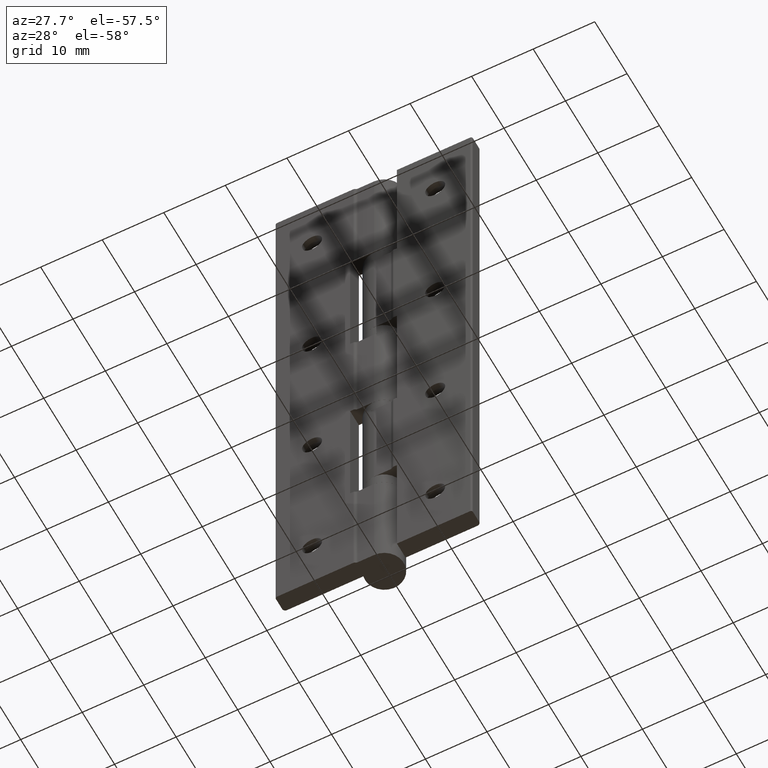
[diagram: clean part render]
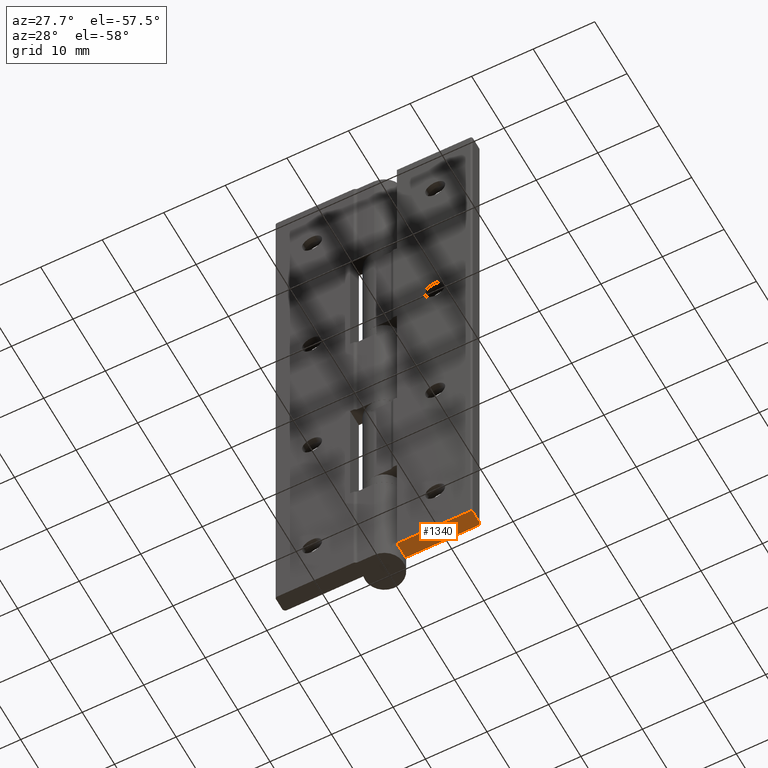
[diagram: same view with one face highlighted and labeled with its STEP entity id]
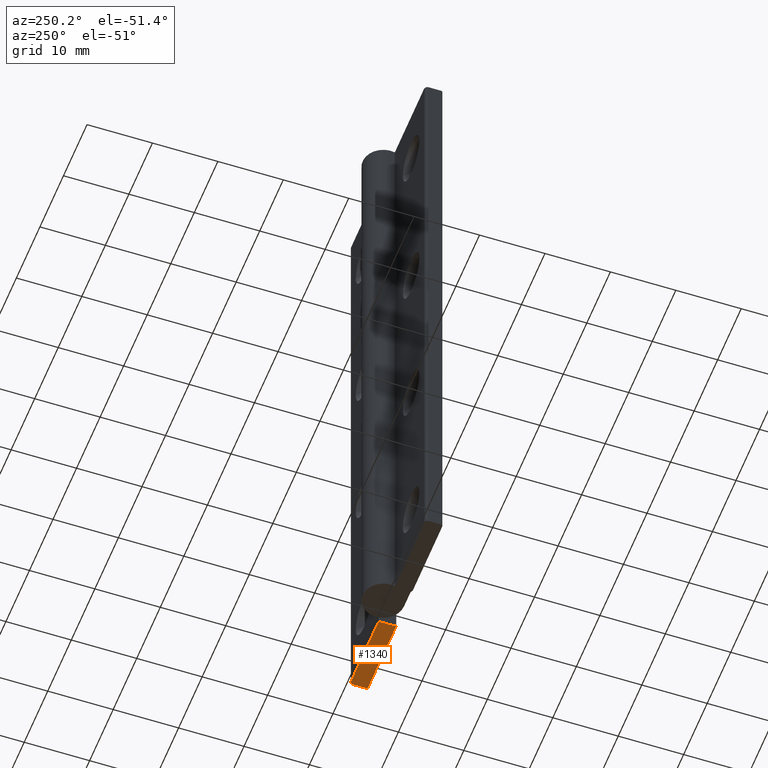
[diagram: same view with one face highlighted and labeled with its STEP entity id]
A machine part, auxiliary view. The second image highlights one B-rep face of the part: STEP entity #1340.
A second angle (auxiliary view) of the same face is appended — the face is thin or edge-on in the first view.
In plain terms, the highlighted planar face has unit normal (0, 0, -1).
Its self-contained STEP definition (entity closure, byte-faithful):
#218=CIRCLE('',#1490,0.3);
#219=CIRCLE('',#1493,0.5);
#291=FACE_OUTER_BOUND('',#405,.T.);
#405=EDGE_LOOP('',(#1201,#1202,#1203,#1204,#1205,#1206));
#499=LINE('',#2233,#590);
#514=LINE('',#2265,#605);
#517=LINE('',#2282,#608);
#519=LINE('',#2286,#610);
#590=VECTOR('',#1822,2.7);
#605=VECTOR('',#1861,11.9);
#608=VECTOR('',#1880,1.9);
#610=VECTOR('',#1884,11.7);
#716=VERTEX_POINT('',#2230);
#717=VERTEX_POINT('',#2232);
#722=VERTEX_POINT('',#2264);
#727=VERTEX_POINT('',#2277);
#728=VERTEX_POINT('',#2281);
#729=VERTEX_POINT('',#2285);
#869=EDGE_CURVE('',#717,#716,#499,.T.);
#886=EDGE_CURVE('',#722,#717,#514,.T.);
#892=EDGE_CURVE('',#722,#727,#218,.T.);
#894=EDGE_CURVE('',#728,#727,#517,.T.);
#896=EDGE_CURVE('',#716,#729,#519,.T.);
#897=EDGE_CURVE('',#728,#729,#219,.T.);
#1201=ORIENTED_EDGE('',*,*,#869,.T.);
#1202=ORIENTED_EDGE('',*,*,#896,.T.);
#1203=ORIENTED_EDGE('',*,*,#897,.F.);
#1204=ORIENTED_EDGE('',*,*,#894,.T.);
#1205=ORIENTED_EDGE('',*,*,#892,.F.);
#1206=ORIENTED_EDGE('',*,*,#886,.T.);
#1275=PLANE('',#1492);
#1340=ADVANCED_FACE('',(#291),#1275,.T.);
#1490=AXIS2_PLACEMENT_3D('',#2278,#1875,#1876);
#1492=AXIS2_PLACEMENT_3D('',#2284,#1882,#1883);
#1493=AXIS2_PLACEMENT_3D('',#2287,#1885,#1886);
#1822=DIRECTION('',(0.,1.,0.));
#1861=DIRECTION('',(-1.,-1.73472347597681E-16,0.));
#1875=DIRECTION('center_axis',(0.,0.,1.));
#1876=DIRECTION('ref_axis',(0.70710678118655,-0.707106781186545,0.));
#1880=DIRECTION('',(0.,-1.,0.));
#1882=DIRECTION('center_axis',(0.,0.,-1.));
#1883=DIRECTION('ref_axis',(-1.,0.,0.));
#1884=DIRECTION('',(1.,0.,0.));
#1885=DIRECTION('center_axis',(0.,0.,1.));
#1886=DIRECTION('ref_axis',(0.707106781186549,0.707106781186546,0.));
#2230=CARTESIAN_POINT('',(3.8,-0.649999999999999,-100.));
#2232=CARTESIAN_POINT('',(3.79999999999999,-3.35,-100.));
#2233=CARTESIAN_POINT('',(3.8,-1.325,-100.));
#2264=CARTESIAN_POINT('',(15.7,-3.35,-100.));
#2265=CARTESIAN_POINT('',(16.,-3.35,-100.));
#2277=CARTESIAN_POINT('',(16.,-3.05,-100.));
#2278=CARTESIAN_POINT('Origin',(15.7,-3.05,-100.));
#2281=CARTESIAN_POINT('',(16.,-1.15,-100.));
#2282=CARTESIAN_POINT('',(16.,-0.649999999999999,-100.));
#2284=CARTESIAN_POINT('Origin',(8.,-2.,-100.));
#2285=CARTESIAN_POINT('',(15.5,-0.649999999999999,-100.));
#2286=CARTESIAN_POINT('',(-5.55111512312578E-16,-0.649999999999999,-100.));
#2287=CARTESIAN_POINT('Origin',(15.5,-1.15,-100.));